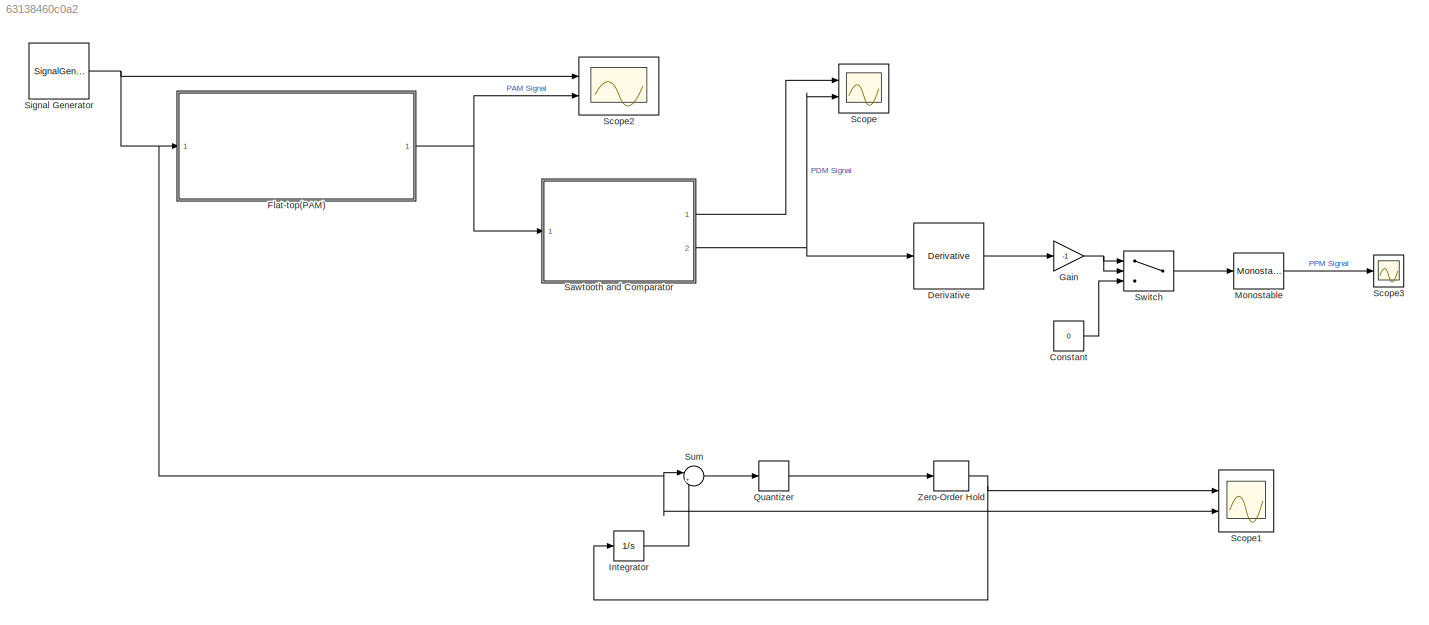
MODEL slx_63138460c0a2
KIND model
CONFIG AbsTol = auto
CONFIG EnableMultiTasking = off
CONFIG FixedStep = auto
CONFIG MaxStep = auto
CONFIG MinStep = auto
CONFIG RelTol = 1e-3
CONFIG SampleTimeConstraint = Unconstrained
CONFIG Solver = VariableStepAuto
CONFIG SolverName = VariableStepAuto
CONFIG StartTime = 0.0
CONFIG StopTime = 10.0
BLOCK [Constant] Constant
  Value = 0
BLOCK [Derivative] Derivative
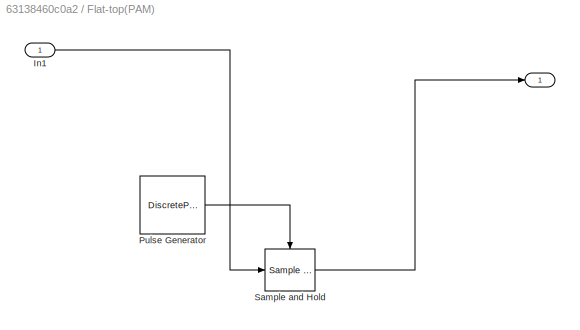
BLOCK [SubSystem] Flat-top(PAM) 
  Ports = [1, 1]
  RequestExecContextInheritance = off
BLOCK [Outport] Flat-top(PAM) / 
BLOCK [Inport] Flat-top(PAM) /In1
BLOCK [DiscretePulseGenerator] Flat-top(PAM) /Pulse Generator
  Period = 0.4
  Ports = [0, 1]
  PulseType = Time based
  PulseWidth = 50
BLOCK [Reference] Flat-top(PAM) /Sample and Hold  REF=dspsigops/Sample
and Hold
  Ports = [1, 1, 0, 1]
  SourceBlock = dspsigops/Sample\nand Hold
  SourceProductBaseCode = DS
  SourceType = Sample and Hold
BLOCK [Gain] Gain
  Gain = -1
BLOCK [Integrator] Integrator
  Ports = [1, 1]
BLOCK [Reference] Monostable  REF=powerlib_meascontrol/Logic/Monostable
  Ports = [1, 1]
  SourceBlock = powerlib_meascontrol/Logic/Monostable
  SourceProductBaseCode = PS
  SourceType = Monostable
BLOCK [Quantizer] Quantizer
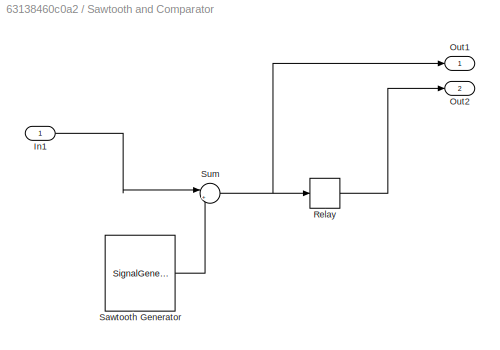
BLOCK [SubSystem] Sawtooth and Comparator
  Ports = [1, 2]
  RequestExecContextInheritance = off
BLOCK [Inport] Sawtooth and Comparator/In1
BLOCK [Outport] Sawtooth and Comparator/Out1
BLOCK [Outport] Sawtooth and Comparator/Out2
  Port = 2
BLOCK [Relay] Sawtooth and Comparator/Relay
BLOCK [SignalGenerator] Sawtooth and Comparator/Sawtooth Generator
  Amplitude = 1.5
  Frequency = 2
  Ports = [0, 1]
  WaveForm = sawtooth
BLOCK [Sum] Sawtooth and Comparator/Sum
  Inputs = |++
  Ports = [2, 1]
BLOCK [Scope] Scope
  Floating = off
  NumInputPorts = 2
  Ports = [2]
  ScopeSpecificationString = Simulink.scopes.TimeScopeBlockCfg('CurrentConfiguration', extmgr.ConfigurationSet(extmgr.Configuration('Core','General UI',true),extmgr.Configuration('Core','Source UI',true),extmgr.Configuration('Sources','WiredSimulink',true),extmgr.Configuration('Visuals','Time Domain',true,'SerializedDisplays',{struct('MinYLimReal','-1.19277','MaxYLimReal','1.13458','YLabelReal','','MinYLimMag','0.00000','MaxY...<+1417ch>
BLOCK [Scope] Scope1
  Floating = off
  NumInputPorts = 2
  Ports = [2]
  ScopeSpecificationString = Simulink.scopes.TimeScopeBlockCfg('CurrentConfiguration', extmgr.ConfigurationSet(extmgr.Configuration('Core','General UI',true),extmgr.Configuration('Core','Source UI',true),extmgr.Configuration('Sources','WiredSimulink',true,'DataLoggingVariableName','ScopeData1'),extmgr.Configuration('Visuals','Time Domain',true,'SerializedDisplays',{struct('MinYLimReal','-1.25','MaxYLimReal','1.25','YLabelReal...<+1375ch>
BLOCK [Scope] Scope2
  Floating = off
  NumInputPorts = 2
  Ports = [2]
  ScopeSpecificationString = Simulink.scopes.TimeScopeBlockCfg('CurrentConfiguration', extmgr.ConfigurationSet(extmgr.Configuration('Core','General UI',true),extmgr.Configuration('Core','Source UI',true),extmgr.Configuration('Sources','WiredSimulink',true,'DataLoggingVariableName','ScopeData2'),extmgr.Configuration('Visuals','Time Domain',true,'SerializedDisplays',{struct('MinYLimReal','-1.25','MaxYLimReal','1.25','YLabelReal...<+1410ch>
BLOCK [Scope] Scope3
  Floating = off
  NumInputPorts = 1
  Ports = [1]
  ScopeSpecificationString = Simulink.scopes.TimeScopeBlockCfg('CurrentConfiguration', extmgr.ConfigurationSet(extmgr.Configuration('Core','General UI',true),extmgr.Configuration('Core','Source UI',true),extmgr.Configuration('Sources','WiredSimulink',true,'DataLoggingVariableName','ScopeData3'),extmgr.Configuration('Visuals','Time Domain',true,'SerializedDisplays',{struct('MinYLimReal','-0.00101','MaxYLimReal','0.0054','YLabe...<+1384ch>
BLOCK [SignalGenerator] Signal Generator
  Frequency = 1/4
  Ports = [0, 1]
BLOCK [Sum] Sum
  Inputs = |+-
  Ports = [2, 1]
BLOCK [Switch] Switch
  InputSameDT = off
  SaturateOnIntegerOverflow = off
BLOCK [ZeroOrderHold] Zero-Order Hold
  SampleTime = -1
LINE Constant:1 -> Switch:3
LINE Derivative:1 -> Gain:1
LINE Flat-top(PAM) /In1:1 -> Flat-top(PAM) /Sample and Hold:1
LINE Flat-top(PAM) /Pulse Generator:1 -> Flat-top(PAM) /Sample and Hold:trigger
LINE Flat-top(PAM) /Sample and Hold:1 -> Flat-top(PAM) / :1
NET Flat-top(PAM) :1 -> Sawtooth and Comparator:1, Scope2:2
NET Gain:1 -> Switch:1, Switch:2
LINE Integrator:1 -> Sum:2
LINE Monostable:1 -> Scope3:1
LINE Quantizer:1 -> Zero-Order Hold:1
LINE Sawtooth and Comparator/In1:1 -> Sawtooth and Comparator/Sum:1
LINE Sawtooth and Comparator/Relay:1 -> Sawtooth and Comparator/Out2:1
LINE Sawtooth and Comparator/Sawtooth Generator:1 -> Sawtooth and Comparator/Sum:2
NET Sawtooth and Comparator/Sum:1 -> Sawtooth and Comparator/Out1:1, Sawtooth and Comparator/Relay:1
LINE Sawtooth and Comparator:1 -> Scope:1
NET Sawtooth and Comparator:2 -> Derivative:1, Scope:2
NET Signal Generator:1 -> Flat-top(PAM) :1, Scope1:2, Scope2:1, Sum:1
LINE Sum:1 -> Quantizer:1
LINE Switch:1 -> Monostable:1
NET Zero-Order Hold:1 -> Integrator:1, Scope1:1
note: NET lines group one-source signal fan-out (src -> all destinations, sorted); 1:1 wires keep LINE
